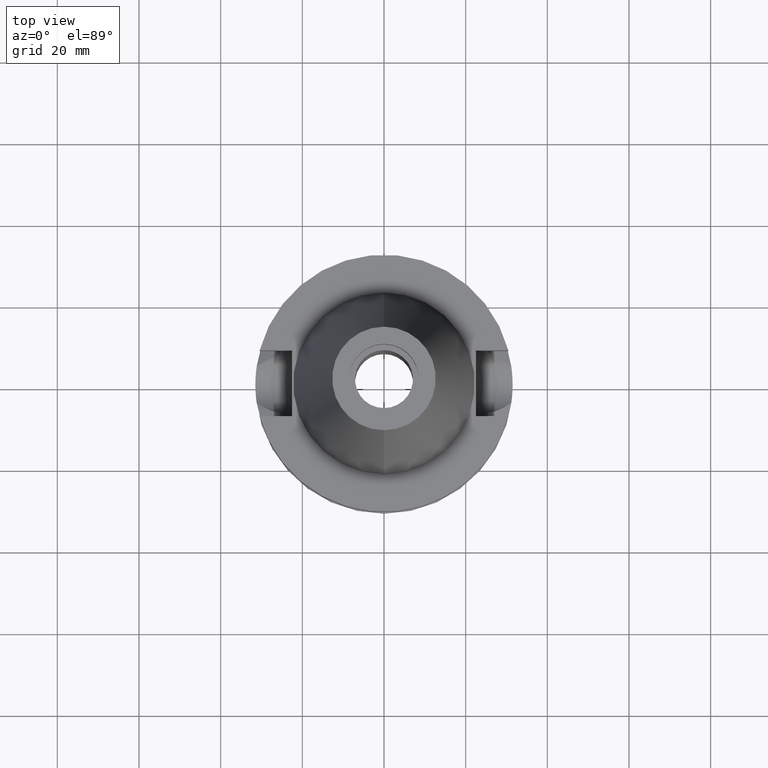
[diagram: clean part render]
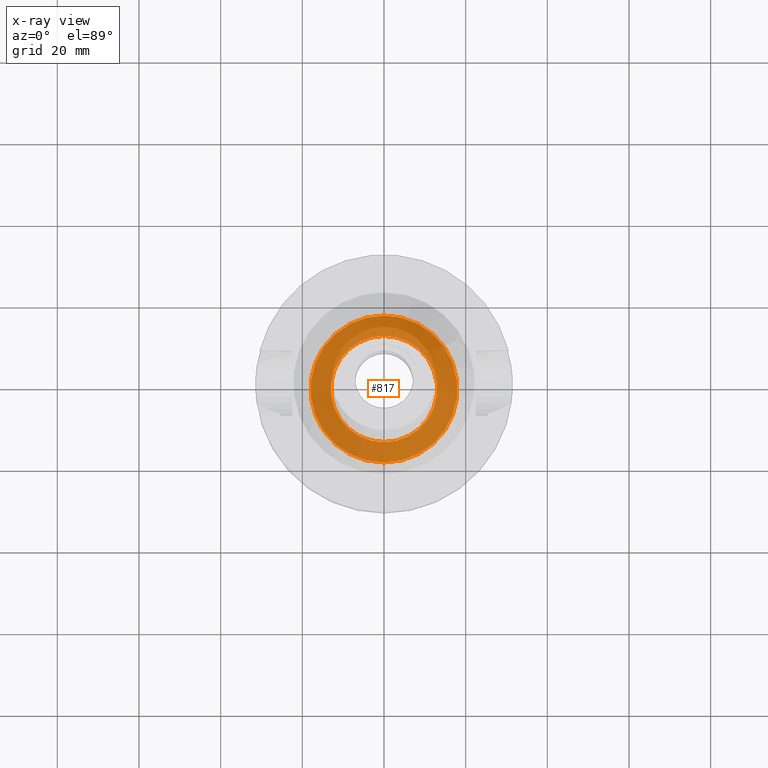
[diagram: x-ray — body ghosted, one internal face saturated and labeled with its STEP entity id]
A machine part, top view, then the same camera in x-ray: the body is ghosted and one INTERNAL B-rep face — a face not visible from any outside direction — is saturated and labeled: STEP entity #817.
In plain terms, the highlighted planar face has unit normal (0, 0, -1).
Its self-contained STEP definition (entity closure, byte-faithful):
#10 = ORIENTED_EDGE ( 'NONE', *, *, #1095, .F. ) ;
#355 = EDGE_LOOP ( 'NONE', ( #2296, #10 ) ) ;
#363 = EDGE_CURVE ( 'NONE', #2375, #1626, #3237, .T. ) ;
#386 = CARTESIAN_POINT ( 'NONE',  ( 0.0000000000000000000, 0.0000000000000000000, -10.80000000000000071 ) ) ;
#751 = ORIENTED_EDGE ( 'NONE', *, *, #363, .F. ) ;
#766 = CIRCLE ( 'NONE', #3169, 13.00000000000000000 ) ;
#817 = ADVANCED_FACE ( 'NONE', ( #3392, #1781 ), #938, .F. ) ;
#837 = AXIS2_PLACEMENT_3D ( 'NONE', #1254, #3477, #3445 ) ;
#853 = VERTEX_POINT ( 'NONE', #1767 ) ;
#938 = PLANE ( 'NONE',  #1286 ) ;
#1039 = CARTESIAN_POINT ( 'NONE',  ( 0.0000000000000000000, 0.0000000000000000000, -10.80000000000000071 ) ) ;
#1095 = EDGE_CURVE ( 'NONE', #853, #3087, #2438, .T. ) ;
#1254 = CARTESIAN_POINT ( 'NONE',  ( 0.0000000000000000000, 0.0000000000000000000, -10.80000000000000071 ) ) ;
#1286 = AXIS2_PLACEMENT_3D ( 'NONE', #1446, #2023, #2853 ) ;
#1364 = DIRECTION ( 'NONE',  ( 0.0000000000000000000, 0.0000000000000000000, -1.000000000000000000 ) ) ;
#1446 = CARTESIAN_POINT ( 'NONE',  ( 0.0000000000000000000, 0.0000000000000000000, -10.80000000000000071 ) ) ;
#1512 = CARTESIAN_POINT ( 'NONE',  ( 0.0000000000000000000, -13.00000000000000000, -10.80000000000000071 ) ) ;
#1540 = DIRECTION ( 'NONE',  ( 0.0000000000000000000, 0.0000000000000000000, 1.000000000000000000 ) ) ;
#1626 = VERTEX_POINT ( 'NONE', #1512 ) ;
#1767 = CARTESIAN_POINT ( 'NONE',  ( 0.0000000000000000000, -18.00000000000000000, -10.80000000000000071 ) ) ;
#1781 = FACE_BOUND ( 'NONE', #3414, .T. ) ;
#2018 = DIRECTION ( 'NONE',  ( 0.0000000000000000000, -1.000000000000000000, 0.0000000000000000000 ) ) ;
#2023 = DIRECTION ( 'NONE',  ( 0.0000000000000000000, 0.0000000000000000000, -1.000000000000000000 ) ) ;
#2053 = EDGE_CURVE ( 'NONE', #3087, #853, #2486, .T. ) ;
#2176 = CARTESIAN_POINT ( 'NONE',  ( 0.0000000000000000000, 0.0000000000000000000, -10.80000000000000071 ) ) ;
#2247 = DIRECTION ( 'NONE',  ( 0.0000000000000000000, -1.000000000000000000, 0.0000000000000000000 ) ) ;
#2296 = ORIENTED_EDGE ( 'NONE', *, *, #2053, .F. ) ;
#2375 = VERTEX_POINT ( 'NONE', #2935 ) ;
#2378 = CARTESIAN_POINT ( 'NONE',  ( 0.0000000000000000000, 18.00000000000000000, -10.80000000000000071 ) ) ;
#2436 = AXIS2_PLACEMENT_3D ( 'NONE', #2176, #1364, #2247 ) ;
#2438 = CIRCLE ( 'NONE', #2436, 18.00000000000000000 ) ;
#2486 = CIRCLE ( 'NONE', #837, 18.00000000000000000 ) ;
#2551 = AXIS2_PLACEMENT_3D ( 'NONE', #1039, #1540, #2636 ) ;
#2636 = DIRECTION ( 'NONE',  ( 0.0000000000000000000, 1.000000000000000000, 0.0000000000000000000 ) ) ;
#2820 = ORIENTED_EDGE ( 'NONE', *, *, #3511, .F. ) ;
#2853 = DIRECTION ( 'NONE',  ( 0.0000000000000000000, -1.000000000000000000, 0.0000000000000000000 ) ) ;
#2935 = CARTESIAN_POINT ( 'NONE',  ( 0.0000000000000000000, 13.00000000000000000, -10.80000000000000071 ) ) ;
#3087 = VERTEX_POINT ( 'NONE', #2378 ) ;
#3140 = DIRECTION ( 'NONE',  ( 0.0000000000000000000, 0.0000000000000000000, 1.000000000000000000 ) ) ;
#3169 = AXIS2_PLACEMENT_3D ( 'NONE', #386, #3140, #2018 ) ;
#3237 = CIRCLE ( 'NONE', #2551, 13.00000000000000000 ) ;
#3392 = FACE_OUTER_BOUND ( 'NONE', #355, .T. ) ;
#3414 = EDGE_LOOP ( 'NONE', ( #751, #2820 ) ) ;
#3445 = DIRECTION ( 'NONE',  ( 0.0000000000000000000, 1.000000000000000000, 0.0000000000000000000 ) ) ;
#3477 = DIRECTION ( 'NONE',  ( 0.0000000000000000000, 0.0000000000000000000, -1.000000000000000000 ) ) ;
#3511 = EDGE_CURVE ( 'NONE', #1626, #2375, #766, .T. ) ;